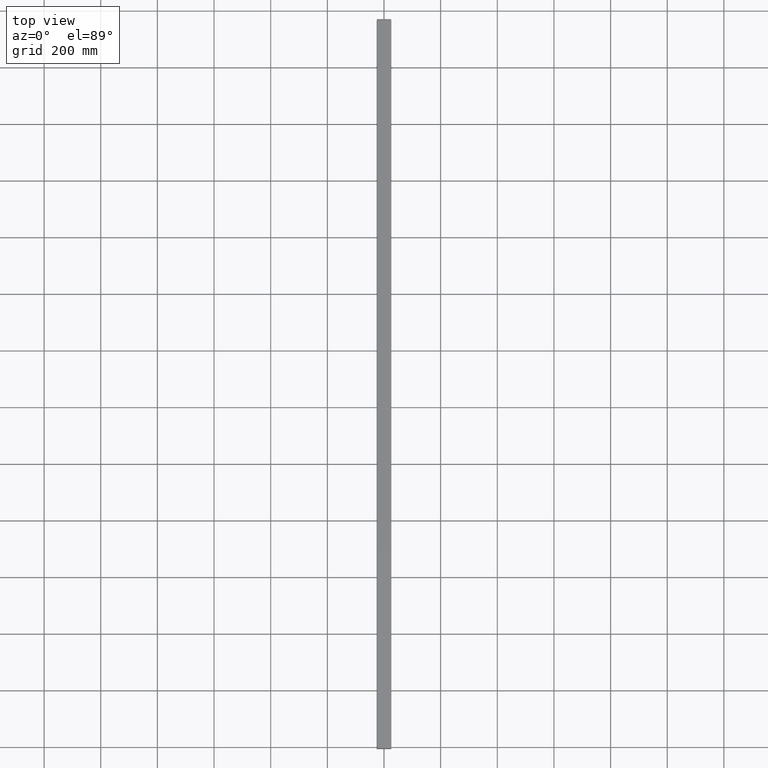
[diagram: clean part render]
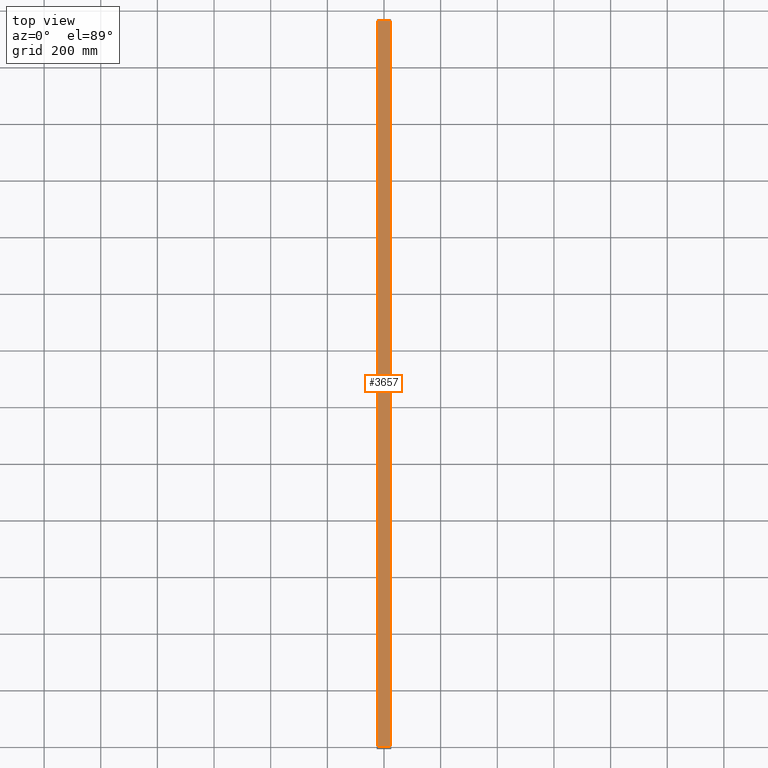
[diagram: same view with one face highlighted and labeled with its STEP entity id]
A machine part, top view. The second image highlights one B-rep face of the part: STEP entity #3657.
In plain terms, the highlighted planar face has unit normal (0, 0, -1).
Its self-contained STEP definition (entity closure, byte-faithful):
#97 = CARTESIAN_POINT ( 'NONE',  ( -1.000000000000000000, -0.8506000000000000227, -50.50000000000000000 ) ) ;
#319 = AXIS2_PLACEMENT_3D ( 'NONE', #832, #1140, #2421 ) ;
#443 = EDGE_CURVE ( 'NONE', #2612, #2650, #1947, .T. ) ;
#659 = CARTESIAN_POINT ( 'NONE',  ( -1.000000000000000000, -0.8506000000000000227, 50.50000000000000000 ) ) ;
#722 = VERTEX_POINT ( 'NONE', #983 ) ;
#739 = VECTOR ( 'NONE', #2241, 39.37007874015748143 ) ;
#759 = ORIENTED_EDGE ( 'NONE', *, *, #3316, .F. ) ;
#776 = EDGE_CURVE ( 'NONE', #722, #4106, #3114, .T. ) ;
#832 = CARTESIAN_POINT ( 'NONE',  ( -0.9999999999999998890, -0.8506000000000000227, 50.50000000000000000 ) ) ;
#983 = CARTESIAN_POINT ( 'NONE',  ( -1.000000000000000000, -0.8506000000000000227, 50.50000000000000000 ) ) ;
#1140 = DIRECTION ( 'NONE',  ( 1.000000000000000000, 0.000000000000000000, 0.000000000000000000 ) ) ;
#1173 = VECTOR ( 'NONE', #1238, 39.37007874015748143 ) ;
#1214 = LINE ( 'NONE', #4102, #1173 ) ;
#1238 = DIRECTION ( 'NONE',  ( -0.000000000000000000, -1.000000000000000000, -0.000000000000000000 ) ) ;
#1428 = ORIENTED_EDGE ( 'NONE', *, *, #776, .F. ) ;
#1482 = ORIENTED_EDGE ( 'NONE', *, *, #443, .T. ) ;
#1882 = CARTESIAN_POINT ( 'NONE',  ( -0.9999999999999998890, 0.8506000000000000227, 50.50000000000000000 ) ) ;
#1919 = DIRECTION ( 'NONE',  ( -0.000000000000000000, -0.000000000000000000, -1.000000000000000000 ) ) ;
#1947 = LINE ( 'NONE', #3776, #739 ) ;
#1984 = CARTESIAN_POINT ( 'NONE',  ( -0.9999999999999998890, -0.8506000000000000227, -50.50000000000000000 ) ) ;
#2241 = DIRECTION ( 'NONE',  ( -0.000000000000000000, -0.000000000000000000, -1.000000000000000000 ) ) ;
#2421 = DIRECTION ( 'NONE',  ( 0.000000000000000000, 0.000000000000000000, -1.000000000000000000 ) ) ;
#2612 = VERTEX_POINT ( 'NONE', #1882 ) ;
#2650 = VERTEX_POINT ( 'NONE', #4105 ) ;
#2726 = FACE_OUTER_BOUND ( 'NONE', #3090, .T. ) ;
#2920 = VECTOR ( 'NONE', #1919, 39.37007874015748143 ) ;
#3090 = EDGE_LOOP ( 'NONE', ( #3506, #1428, #759, #1482 ) ) ;
#3114 = LINE ( 'NONE', #659, #2920 ) ;
#3119 = EDGE_CURVE ( 'NONE', #2650, #4106, #3651, .T. ) ;
#3316 = EDGE_CURVE ( 'NONE', #2612, #722, #1214, .T. ) ;
#3506 = ORIENTED_EDGE ( 'NONE', *, *, #3119, .T. ) ;
#3565 = VECTOR ( 'NONE', #3609, 39.37007874015748143 ) ;
#3609 = DIRECTION ( 'NONE',  ( -0.000000000000000000, -1.000000000000000000, -0.000000000000000000 ) ) ;
#3651 = LINE ( 'NONE', #1984, #3565 ) ;
#3657 = ADVANCED_FACE ( 'NONE', ( #2726 ), #4001, .F. ) ;
#3776 = CARTESIAN_POINT ( 'NONE',  ( -0.9999999999999998890, 0.8506000000000000227, 50.50000000000000000 ) ) ;
#4001 = PLANE ( 'NONE',  #319 ) ;
#4102 = CARTESIAN_POINT ( 'NONE',  ( -0.9999999999999998890, -0.8506000000000000227, 50.50000000000000000 ) ) ;
#4105 = CARTESIAN_POINT ( 'NONE',  ( -0.9999999999999998890, 0.8506000000000000227, -50.50000000000000000 ) ) ;
#4106 = VERTEX_POINT ( 'NONE', #97 ) ;